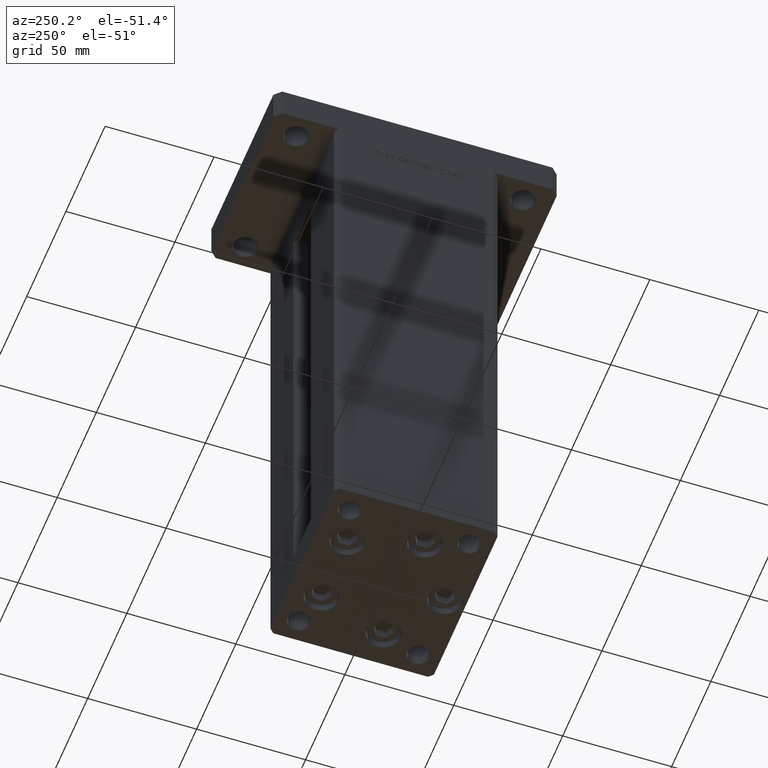
[diagram: clean part render]
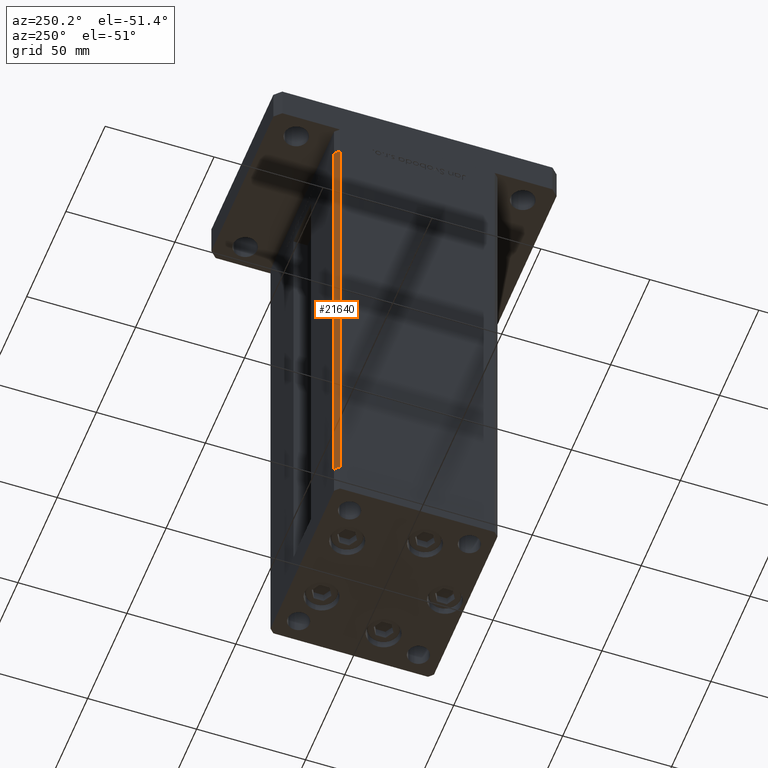
[diagram: same view with one face highlighted and labeled with its STEP entity id]
A machine part, auxiliary view. The second image highlights one B-rep face of the part: STEP entity #21640.
In plain terms, the highlighted planar face has unit normal (0.7071, -0.7071, 0).
Its self-contained STEP definition (entity closure, byte-faithful):
#1669 = EDGE_LOOP ( 'NONE', ( #7509, #21381, #6392, #52254 ) ) ;
#2313 = VECTOR ( 'NONE', #48882, 1000.000000000000114 ) ;
#4119 = CARTESIAN_POINT ( 'NONE',  ( -40.50000000000000000, 37.50000000000000711, 0.000000000000000000 ) ) ;
#6392 = ORIENTED_EDGE ( 'NONE', *, *, #23059, .F. ) ;
#7060 = DIRECTION ( 'NONE',  ( 0.7071067811865450192, -0.7071067811865500152, 0.000000000000000000 ) ) ;
#7509 = ORIENTED_EDGE ( 'NONE', *, *, #44849, .T. ) ;
#13605 = DIRECTION ( 'NONE',  ( -0.000000000000000000, -0.000000000000000000, -1.000000000000000000 ) ) ;
#13823 = CARTESIAN_POINT ( 'NONE',  ( -42.50000000000000711, 35.50000000000001421, 218.5000000000000000 ) ) ;
#13861 = VECTOR ( 'NONE', #42984, 1000.000000000000000 ) ;
#16046 = LINE ( 'NONE', #4119, #46278 ) ;
#16579 = LINE ( 'NONE', #46395, #43302 ) ;
#16919 = CARTESIAN_POINT ( 'NONE',  ( -42.50000000000000711, 35.50000000000001421, 0.000000000000000000 ) ) ;
#19555 = DIRECTION ( 'NONE',  ( 0.7071067811865500152, 0.7071067811865450192, 0.000000000000000000 ) ) ;
#21381 = ORIENTED_EDGE ( 'NONE', *, *, #28657, .F. ) ;
#21640 = ADVANCED_FACE ( 'NONE', ( #27680 ), #28224, .F. ) ;
#21693 = VERTEX_POINT ( 'NONE', #13823 ) ;
#23059 = EDGE_CURVE ( 'NONE', #37352, #21693, #39946, .T. ) ;
#26471 = CARTESIAN_POINT ( 'NONE',  ( -40.50000000000000000, 37.50000000000000711, 218.5000000000000000 ) ) ;
#26995 = LINE ( 'NONE', #26471, #13861 ) ;
#27680 = FACE_OUTER_BOUND ( 'NONE', #1669, .T. ) ;
#28111 = EDGE_CURVE ( 'NONE', #37352, #51660, #26995, .T. ) ;
#28224 = PLANE ( 'NONE',  #30008 ) ;
#28657 = EDGE_CURVE ( 'NONE', #21693, #39137, #16579, .T. ) ;
#30008 = AXIS2_PLACEMENT_3D ( 'NONE', #44192, #7060, #19555 ) ;
#32227 = CARTESIAN_POINT ( 'NONE',  ( -40.50000000000000000, 37.50000000000000711, 0.000000000000000000 ) ) ;
#33008 = CARTESIAN_POINT ( 'NONE',  ( -40.50000000000000000, 37.50000000000000711, 218.5000000000000000 ) ) ;
#37352 = VERTEX_POINT ( 'NONE', #33008 ) ;
#39137 = VERTEX_POINT ( 'NONE', #16919 ) ;
#39946 = LINE ( 'NONE', #47820, #2313 ) ;
#42984 = DIRECTION ( 'NONE',  ( -0.000000000000000000, -0.000000000000000000, -1.000000000000000000 ) ) ;
#43302 = VECTOR ( 'NONE', #13605, 1000.000000000000000 ) ;
#44192 = CARTESIAN_POINT ( 'NONE',  ( -40.50000000000000000, 37.50000000000000711, 218.5000000000000000 ) ) ;
#44849 = EDGE_CURVE ( 'NONE', #51660, #39137, #16046, .T. ) ;
#46278 = VECTOR ( 'NONE', #50192, 1000.000000000000114 ) ;
#46395 = CARTESIAN_POINT ( 'NONE',  ( -42.50000000000000711, 35.50000000000001421, 218.5000000000000000 ) ) ;
#47820 = CARTESIAN_POINT ( 'NONE',  ( -40.50000000000000000, 37.50000000000000711, 218.5000000000000000 ) ) ;
#48882 = DIRECTION ( 'NONE',  ( -0.7071067811865500152, -0.7071067811865451302, 0.000000000000000000 ) ) ;
#50192 = DIRECTION ( 'NONE',  ( -0.7071067811865500152, -0.7071067811865451302, 0.000000000000000000 ) ) ;
#51660 = VERTEX_POINT ( 'NONE', #32227 ) ;
#52254 = ORIENTED_EDGE ( 'NONE', *, *, #28111, .T. ) ;